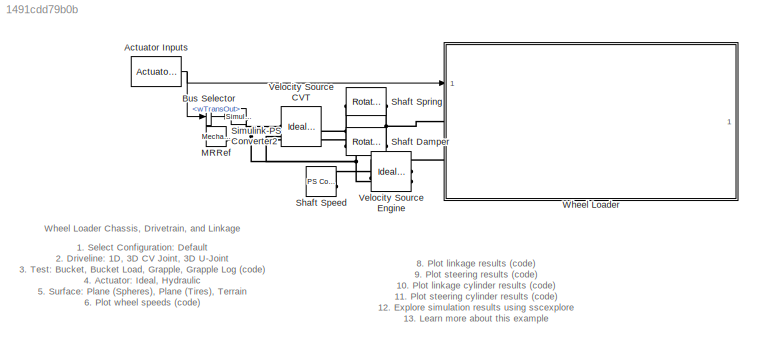
MODEL slx_1491cdd79b0b
KIND model
CONFIG AbsTol = 1e-3
CONFIG EnableMultiTasking = on
CONFIG PostLoadFcn = sm_wheel_loader_config_impl(bdroot,'Bucket')
CONFIG SolverName = ode23t
CONFIG StartFcn = tic
CONFIG StopFcn = Elapsed_Sim_Time = toc;\ndisp(['Elapsed Sim Time = ' num2str(Elapsed_Sim_Time)]);
CONFIG StopTime = 70
BLOCK [Reference] Actuator Inputs  REF=sm_wheel_loader_lib/Actuator Inputs  (lib defined in slx_2f13f0afc9e9, slx_78fdec152d5c)
  AttributesFormatString = %<popup_impl>
  SourceBlock = sm_wheel_loader_lib/Actuator Inputs
BLOCK [BusSelector] Bus Selector
  NameLocation = top
  OutputSignals = Operator.wTransOut
BLOCK [Reference] MRRef  REF=fl_lib/Mechanical/Rotational Elements/Mechanical
Rotational Reference
  SourceBlock = fl_lib/Mechanical/Rotational Elements/Mechanical\nRotational Reference
  SourceType = Mechanical\nRotational Reference
BLOCK [Reference] Shaft Damper  REF=fl_lib/Mechanical/Rotational Elements/Rotational Damper
  NameLocation = top
  SourceBlock = fl_lib/Mechanical/Rotational Elements/Rotational Damper
  SourceType = Rotational Damper
BLOCK [Reference] Shaft Speed  REF=fl_lib/Physical Signals/Sources/PS Constant
  SourceBlock = fl_lib/Physical Signals/Sources/PS Constant
  SourceType = PS Constant
BLOCK [Reference] Shaft Spring  REF=fl_lib/Mechanical/Rotational Elements/Rotational Spring
  NameLocation = top
  SourceBlock = fl_lib/Mechanical/Rotational Elements/Rotational Spring
  SourceType = Rotational Spring
BLOCK [Reference] Simulink-PS Converter2  REF=nesl_utility/Simulink-PS
Converter
  SourceBlock = nesl_utility/Simulink-PS\nConverter
  SourceType = Simulink-PS\nConverter
BLOCK [Reference] Velocity Source CVT  REF=fl_lib/Mechanical/Mechanical Sources/Ideal Angular
Velocity Source
  NameLocation = top
  SourceBlock = fl_lib/Mechanical/Mechanical Sources/Ideal Angular\nVelocity Source
  SourceType = Ideal Angular\nVelocity Source
BLOCK [Reference] Velocity Source Engine  REF=fl_lib/Mechanical/Mechanical Sources/Ideal Angular
Velocity Source
  SourceBlock = fl_lib/Mechanical/Mechanical Sources/Ideal Angular\nVelocity Source
  SourceType = Ideal Angular\nVelocity Source
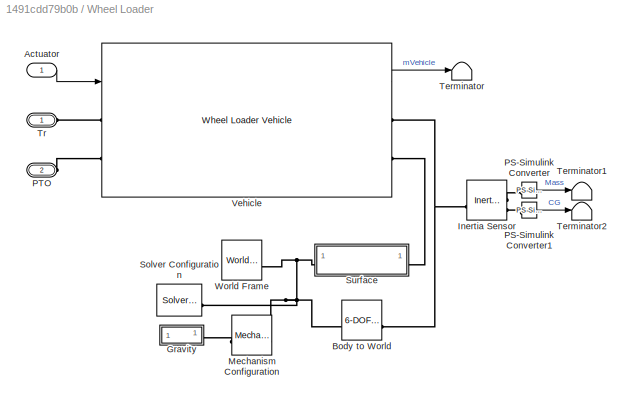
BLOCK [SubSystem] Wheel Loader
  AttributesFormatString = Driveline %<popup_driveline>, %<popup_actuator_model>\n%<popup_impl>, %<popup_surface>
BLOCK [Inport] Wheel Loader/Actuator
BLOCK [Reference] Wheel Loader/Body to World  REF=sm_lib/Joints/6-DOF Joint
  SourceBlock = sm_lib/Joints/6-DOF Joint
  SourceType = 6-DOF Joint
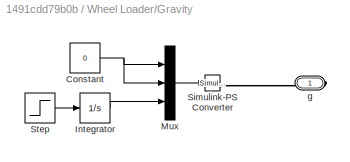
BLOCK [SubSystem] Wheel Loader/Gravity
BLOCK [Constant] Wheel Loader/Gravity/Constant
  Value = 0
BLOCK [Integrator] Wheel Loader/Gravity/Integrator
  LimitOutput = on
  LowerSaturationLimit = -9.81
  UpperSaturationLimit = 0
BLOCK [Mux] Wheel Loader/Gravity/Mux
  DisplayOption = bar
  Inputs = 3
BLOCK [Reference] Wheel Loader/Gravity/Simulink-PS Converter  REF=nesl_utility/Simulink-PS
Converter
  SourceBlock = nesl_utility/Simulink-PS\nConverter
  SourceType = Simulink-PS\nConverter
BLOCK [Step] Wheel Loader/Gravity/Step
  FinalValue = -9.81
  SampleTime = 0
  Time = 0.2
BLOCK [PMIOPort] Wheel Loader/Gravity/g
  Side = Right
BLOCK [Reference] Wheel Loader/Inertia Sensor  REF=sm_lib/Body Elements/Inertia Sensor
  SourceBlock = sm_lib/Body Elements/Inertia Sensor
  SourceType = Inertia Sensor
BLOCK [Reference] Wheel Loader/Mechanism Configuration  REF=sm_lib/Utilities/Mechanism
Configuration
  SourceBlock = sm_lib/Utilities/Mechanism\nConfiguration
  SourceType = Mechanism\nConfiguration
BLOCK [Reference] Wheel Loader/PS-Simulink Converter  REF=nesl_utility/PS-Simulink
Converter
  SourceBlock = nesl_utility/PS-Simulink\nConverter
  SourceType = PS-Simulink\nConverter
BLOCK [Reference] Wheel Loader/PS-Simulink Converter1  REF=nesl_utility/PS-Simulink
Converter
  SourceBlock = nesl_utility/PS-Simulink\nConverter
  SourceType = PS-Simulink\nConverter
BLOCK [PMIOPort] Wheel Loader/PTO
  Port = 2
  Side = Left
BLOCK [Reference] Wheel Loader/Solver Configuration  REF=nesl_utility/Solver
Configuration
  NameLocation = top
  SourceBlock = nesl_utility/Solver\nConfiguration
  SourceType = Solver\nConfiguration
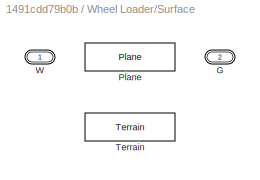
BLOCK [SubSystem] Wheel Loader/Surface
  LabelModeActiveChoice = Plane
  Variant = on
  VariantControl = Choice
  VariantControlMode = label
BLOCK [PMIOPort] Wheel Loader/Surface/G
  Port = 2
  Side = Right
BLOCK [Reference] Wheel Loader/Surface/Plane  REF=wheel_loader_contact_lib/Plane  (lib defined in slx_c9c847b5a653, slx_ee41a34c1fd8)
  SourceBlock = wheel_loader_contact_lib/Plane
BLOCK [Reference] Wheel Loader/Surface/Terrain  REF=wheel_loader_contact_lib/Terrain  (lib defined in slx_c9c847b5a653, slx_ee41a34c1fd8)
  SourceBlock = wheel_loader_contact_lib/Terrain
BLOCK [PMIOPort] Wheel Loader/Surface/W
  Side = Left
BLOCK [Terminator] Wheel Loader/Terminator
BLOCK [Terminator] Wheel Loader/Terminator1
BLOCK [Terminator] Wheel Loader/Terminator2
BLOCK [PMIOPort] Wheel Loader/Tr
  Side = Left
BLOCK [Reference] Wheel Loader/Vehicle  REF=sm_wheel_loader_lib/Wheel Loader Vehicle  (lib defined in slx_2f13f0afc9e9, slx_78fdec152d5c)
  AttributesFormatString = %<popup_driveline_model> (F: %<popup_driveJointF>, R: %<popup_driveJointR>), %<popup_impl> %<popup_load>, %<popup_contact>
  SourceBlock = sm_wheel_loader_lib/Wheel Loader Vehicle
  SourceType = Wheel Loader Vehicle
BLOCK [Reference] Wheel Loader/World Frame  REF=sm_lib/Frames and
Transforms/World Frame
  NameLocation = left
  SourceBlock = sm_lib/Frames and\nTransforms/World Frame
  SourceType = World Frame
ANNOTATION (root): 1. Select Configuration: Default 2. Driveline: 1D , 3D CV Joint , 3D U-Joint 3. Test: Bucket , Bucket Load , Grapple , Grapple Log ( code ) 4. Actuator: Ideal , Hydraulic 5. Surface: Plane (Spheres) , Plane (Tires) , Terrain 6. Plot wheel speeds ( code ) 7. Plot vehicle position ( code )
ANNOTATION (root): 8. Plot linkage results ( code ) 9. Plot steering results ( code ) 10. Plot linkage cylinder results ( code ) 11. Plot steering cylinder results ( code ) 12. Explore simulation results using sscexplore 13. Learn more about this example
ANNOTATION (root): Wheel Loader Chassis, Drivetrain, and Linkage
NET Actuator Inputs:1 -> Bus Selector:1, Wheel Loader:1
LINE Bus Selector:1 -> Simulink-PS Converter2:1
LINE Wheel Loader/Actuator:1 -> Wheel Loader/Vehicle:1
NET Wheel Loader/Gravity/Constant:1 -> Wheel Loader/Gravity/Mux:1, Wheel Loader/Gravity/Mux:2
LINE Wheel Loader/Gravity/Integrator:1 -> Wheel Loader/Gravity/Mux:3
LINE Wheel Loader/Gravity/Mux:1 -> Wheel Loader/Gravity/Simulink-PS Converter:1
LINE Wheel Loader/Gravity/Step:1 -> Wheel Loader/Gravity/Integrator:1
LINE Wheel Loader/PS-Simulink Converter1:1 -> Wheel Loader/Terminator2:1
LINE Wheel Loader/PS-Simulink Converter:1 -> Wheel Loader/Terminator1:1
LINE Wheel Loader/Vehicle:1 -> Wheel Loader/Terminator:1
PNET net1: MRRef:LConn1 -- Velocity Source CVT:RConn2 -- Velocity Source Engine:RConn2
PNET net2: Shaft Damper:LConn1 -- Shaft Spring:LConn1 -- Wheel Loader:LConn1
PNET net3: Shaft Damper:RConn1 -- Shaft Spring:RConn1 -- Velocity Source CVT:LConn1
PLINE Shaft Speed:RConn1 -- Velocity Source Engine:RConn1
PLINE Simulink-PS Converter2:RConn1 -- Velocity Source CVT:RConn1
PLINE Velocity Source Engine:LConn1 -- Wheel Loader:LConn2
PNET net4: Wheel Loader/Body to World:LConn1 -- Wheel Loader/Mechanism Configuration:RConn1 -- Wheel Loader/Solver Configuration:RConn1 -- Wheel Loader/Surface:LConn1 -- Wheel Loader/World Frame:RConn1
PNET net5: Wheel Loader/Body to World:RConn1 -- Wheel Loader/Inertia Sensor:LConn1 -- Wheel Loader/Vehicle:RConn1
PLINE Wheel Loader/Gravity/Simulink-PS Converter:RConn1 -- Wheel Loader/Gravity/g:RConn1
PLINE Wheel Loader/Gravity:RConn1 -- Wheel Loader/Mechanism Configuration:LConn1
PLINE Wheel Loader/Inertia Sensor:RConn1 -- Wheel Loader/PS-Simulink Converter:LConn1
PLINE Wheel Loader/Inertia Sensor:RConn2 -- Wheel Loader/PS-Simulink Converter1:LConn1
PLINE Wheel Loader/PTO:RConn1 -- Wheel Loader/Vehicle:LConn2
PLINE Wheel Loader/Surface:RConn1 -- Wheel Loader/Vehicle:RConn2
PLINE Wheel Loader/Tr:RConn1 -- Wheel Loader/Vehicle:LConn1
note: NET lines group one-source signal fan-out (src -> all destinations, sorted); 1:1 wires keep LINE; PNET lines group multi-terminal physical nets as a canonical sorted terminal list (undirected conserving connections); 2-terminal nets keep the pairwise PLINE form
